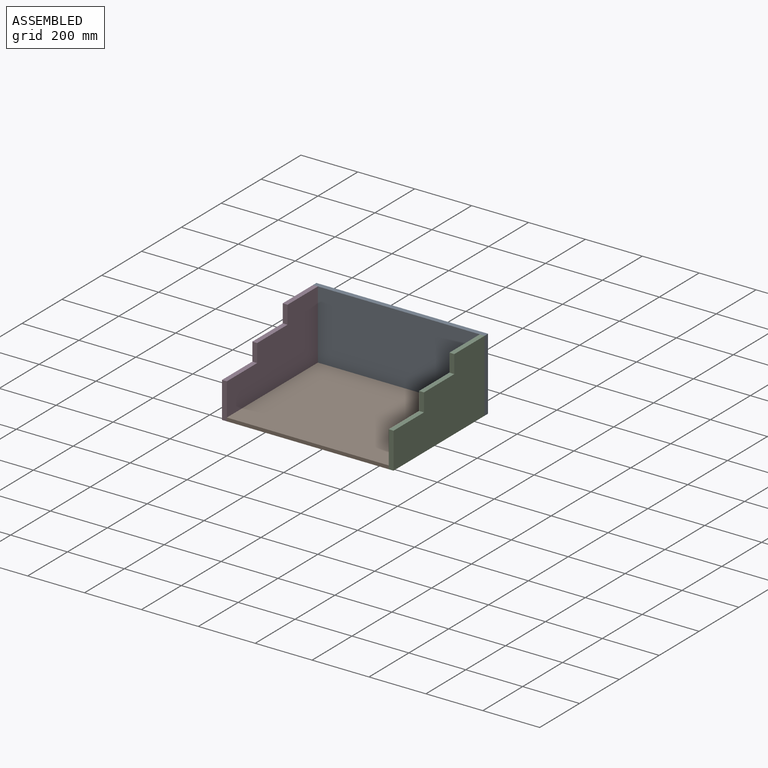
[diagram: assembled view]
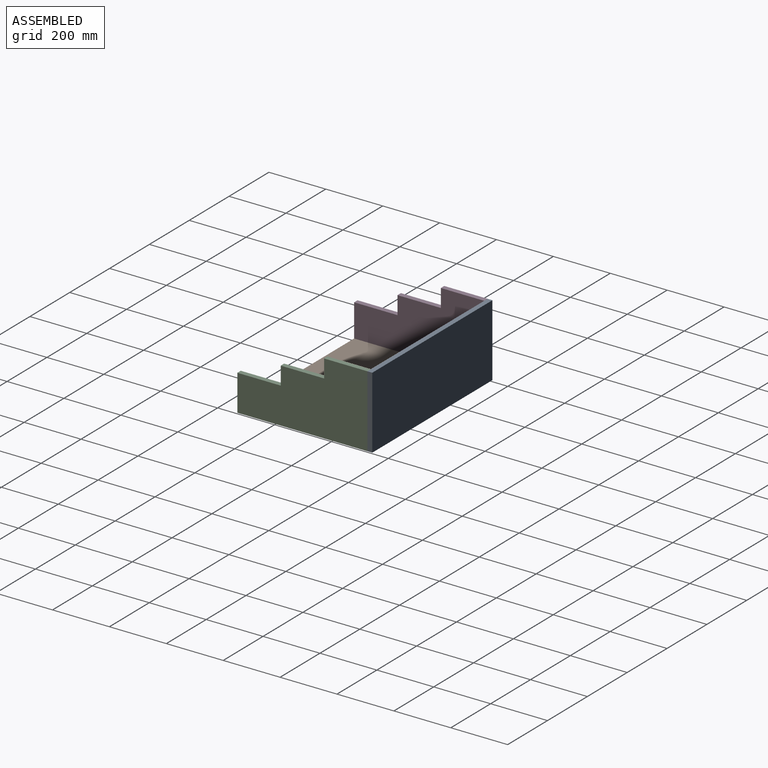
[diagram: assembled view, second angle]
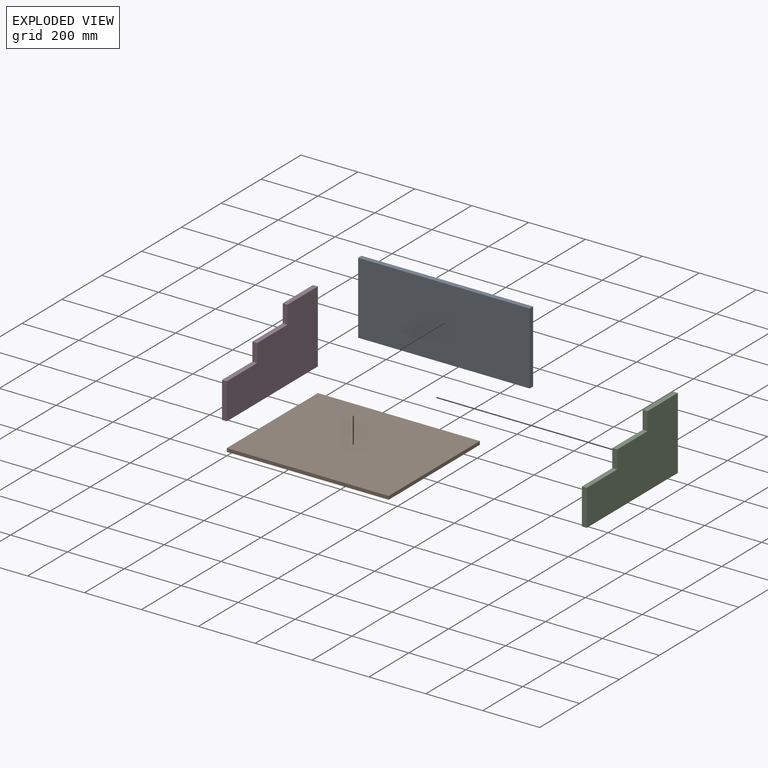
[diagram: exploded view]
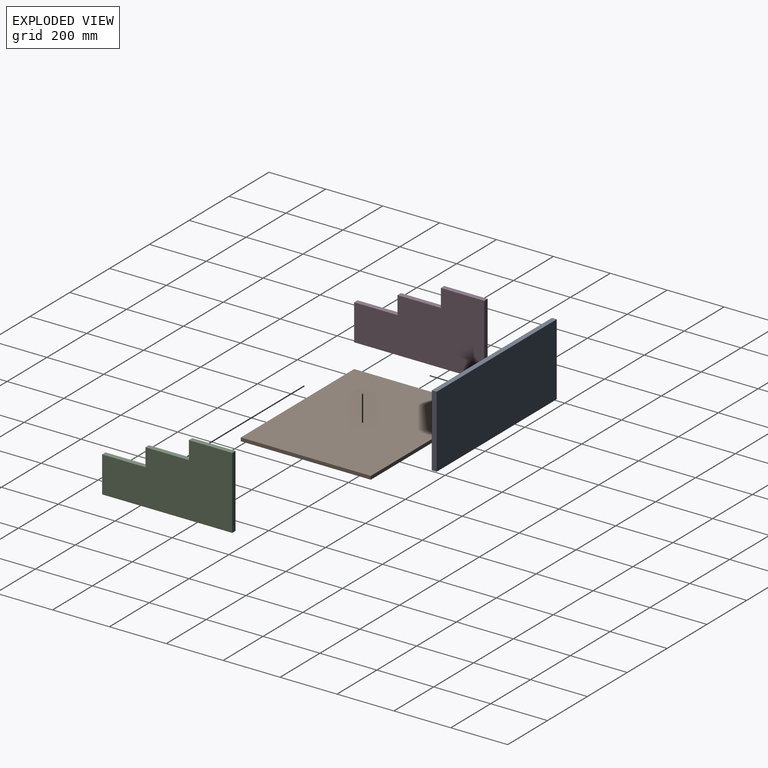
[diagram: exploded view, second angle]
ASSEMBLY  parts=4 mates=4
PART A: 6 faces, bbox 603.3x17x254 mm
  f0: plane 603.25x17.02mm, normal (0,0,1), area 10266.1mm2, adj f1,f3,f4,f5
  f1: plane 254x17.02mm, normal (-1,0,0), area 4322.6mm2, adj f0,f2,f4,f5
  f2: plane 603.25x17.02mm, normal (0,0,-1), area 10266.1mm2, adj f1,f3,f4,f5
  f3: plane 254x17.02mm, normal (1,0,0), area 4322.6mm2, adj f0,f2,f4,f5
  f4: plane 603.25x254mm, normal (0,-1,0), area 153225.5mm2, adj f0,f1,f2,f3
  f5: plane 603.25x254mm, normal (0,1,0), area 153225.5mm2, adj f0,f1,f2,f3
PART B: 6 faces, bbox 569.2x457.2x12.1 mm
  f0: plane 569.21x12.07mm, normal (0,1,0), area 6867.6mm2, adj f1,f3,f4,f5
  f1: plane 457.2x12.07mm, normal (-1,0,0), area 5516.1mm2, adj f0,f2,f4,f5
  f2: plane 569.21x12.07mm, normal (0,-1,0), area 6867.6mm2, adj f1,f3,f4,f5
  f3: plane 457.2x12.07mm, normal (1,0,0), area 5516.1mm2, adj f0,f2,f4,f5
  f4: plane 569.21x457.2mm, normal (0,0,1), area 260244.6mm2, adj f0,f1,f2,f3
  f5: plane 569.21x457.2mm, normal (0,0,-1), area 260244.6mm2, adj f0,f1,f2,f3
PART C: 10 faces, bbox 17x457.2x254 mm
  f0: plane 152.4x17.02mm, normal (0,0,1), area 2593.5mm2, adj f1,f7,f8,f9
  f1: plane 127x17.02mm, normal (0,-1,0), area 2161.3mm2, adj f0,f2,f8,f9
  f2: plane 457.2x17.02mm, normal (0,0,-1), area 7780.6mm2, adj f1,f3,f8,f9
  f3: plane 254x17.02mm, normal (0,1,0), area 4322.6mm2, adj f2,f4,f8,f9
  f4: plane 152.4x17.02mm, normal (0,0,1), area 2593.5mm2, adj f3,f5,f8,f9
  f5: plane 63.5x17.02mm, normal (0,-1,0), area 1080.6mm2, adj f4,f6,f8,f9
  f6: plane 152.4x17.02mm, normal (0,0,1), area 2593.5mm2, adj f5,f7,f8,f9
  f7: plane 63.5x17.02mm, normal (0,-1,0), area 1080.6mm2, adj f0,f6,f8,f9
  f8: plane 457.2x254mm, normal (1,0,0), area 87096.6mm2, adj f0,f1,f2,f3,f4,f5,f6,f7
  f9: plane 457.2x254mm, normal (-1,0,0), area 87096.6mm2, adj f0,f1,f2,f3,f4,f5,f6,f7
PART D: same geometry as C
PLACE A t=(-17.02,474.22,0)mm
PLACE B at identity fixed
PLACE C t=(569.21,0,0)mm
PLACE D t=(-17.02,0,0)mm
MATE fastened A.f4 <-> C.f3  axis (0,-1,0) through (586.23,457.2,0)mm
MATE fastened D.f3 <-> A.f4  axis (0,1,0) through (-17.02,457.2,0)mm
MATE fastened C.f9 <-> B.f3  axis (-1,0,0) through (569.21,0,0)mm
MATE fastened D.f8 <-> B.f1  axis (1,0,0) through (0,0,0)mm
